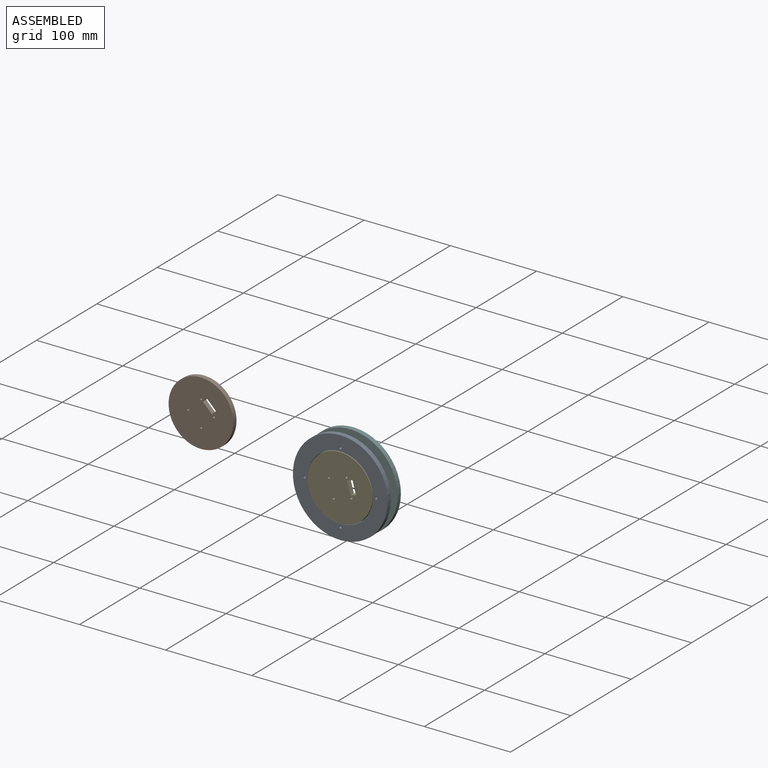
[diagram: assembled view]
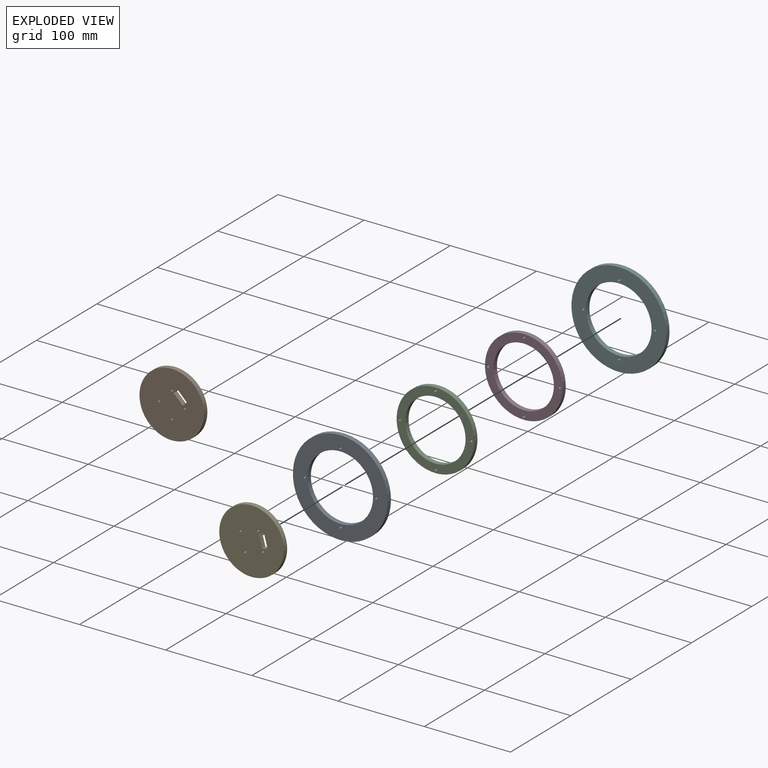
[diagram: exploded view]
GUIDED TOUR — MATED ASSEMBLY (Onshape document 8b8a7d3162498f43e7573d68, AutoMate assembly 8b8a7d3162498f43e7573d68_7b1845c20e63ac5ad6ad9af1_cd9c9a7fb2aed14bbed914a1_default)

This assembly has 6 components, labeled P0..P5 below (a component is one placed occurrence of a part; the same part can appear more than once), held together by 7 mates. A mate is a constraint between two components; its type names the relative motion it leaves free:
  CYLINDRICAL — leaves both rotation about and translation along the listed axis free,
  PLANAR — leaves sliding in the plane through the listed point (normal = the listed direction) and rotation about that normal free.
Axis/direction vectors are unit vectors and 'through' points are millimeter coordinates, both in the assembly's world frame.

MATES
  1. PLANAR "Planar 3": P5 <-> P3, direction (0.000, -1.000, 0.000) through (-0.67, 6.67, 12.19) mm
  2. CYLINDRICAL "Cylindrical 3": P5 <-> P3, axis (0.000, -1.000, 0.000) through (-0.67, 6.67, 12.19) mm
  3. CYLINDRICAL "Cylindrical 4": P4 <-> P0, axis (0.000, 1.000, 0.000) through (-0.67, -4.78, 12.19) mm
  4. PLANAR "Planar 2": P2 <-> P0, direction (0.000, -1.000, 0.000) through (-0.67, -4.27, 12.19) mm
  5. CYLINDRICAL "Cylindrical 1": P2 <-> P3, axis (0.000, 1.000, 0.000) through (-0.67, 1.20, 12.19) mm
  6. PLANAR "Planar 1": P3 <-> P2, direction (0.000, -1.000, 0.000) through (-0.67, 1.20, 12.19) mm
  7. CYLINDRICAL "Cylindrical 2": P2 <-> P0, axis (0.000, -1.000, 0.000) through (-0.67, -4.27, 12.19) mm

ASSEMBLY ORDER
  1. P0 — the base component [order verified]
  2. P4 [order verified]
  3. P2 [order verified]
  4. P3 [order verified]
  5. P5 [order verified]
  6. P1 [order verified]
Order-tag legend:
  [order verified] — this step's position reverses a verified removal order: the component was checked to insert without passing through the ones already placed.

Of the 6 components, 4 carry the full construction recipe — the FeatureScript program that regenerates the part's solid from scratch; the rest are supplied as boundary geometry only.
Each toured component is shown spotlighted twice — in the assembled view, then in the exploded view, where a leader line traces a displaced component back to its assembled socket (saturated green if recipe-attached, orange if geometry-only; every other component desaturated gray) — followed by its recipe or geometry summary and the mates that hold it.
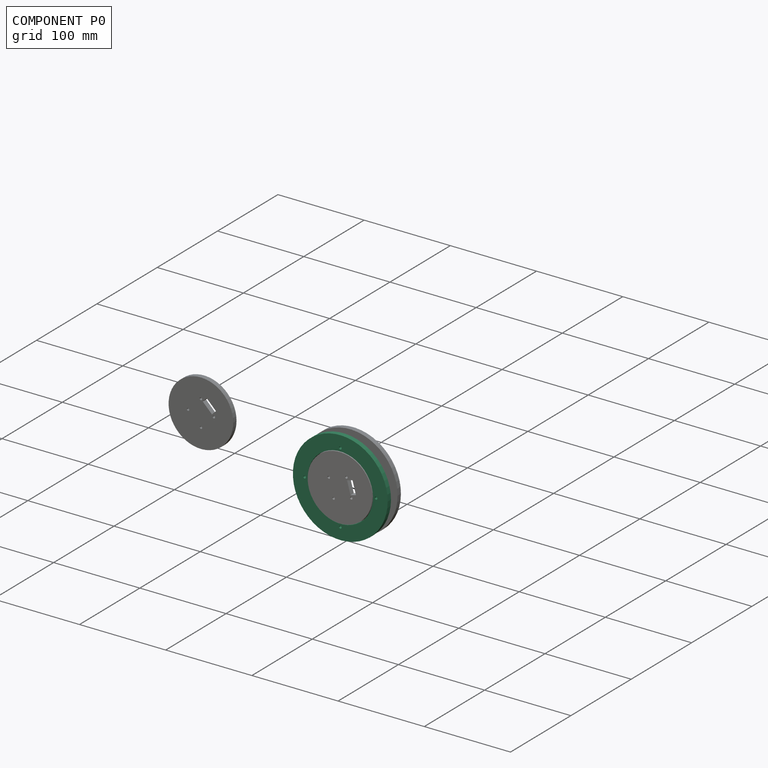
[diagram: component P0 — assembled]
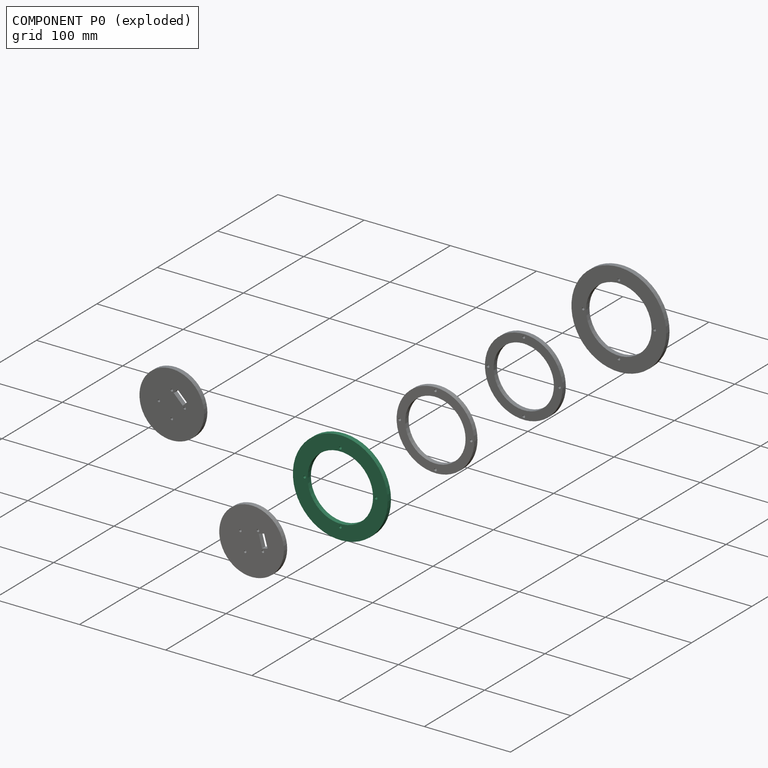
[diagram: component P0 — exploded]
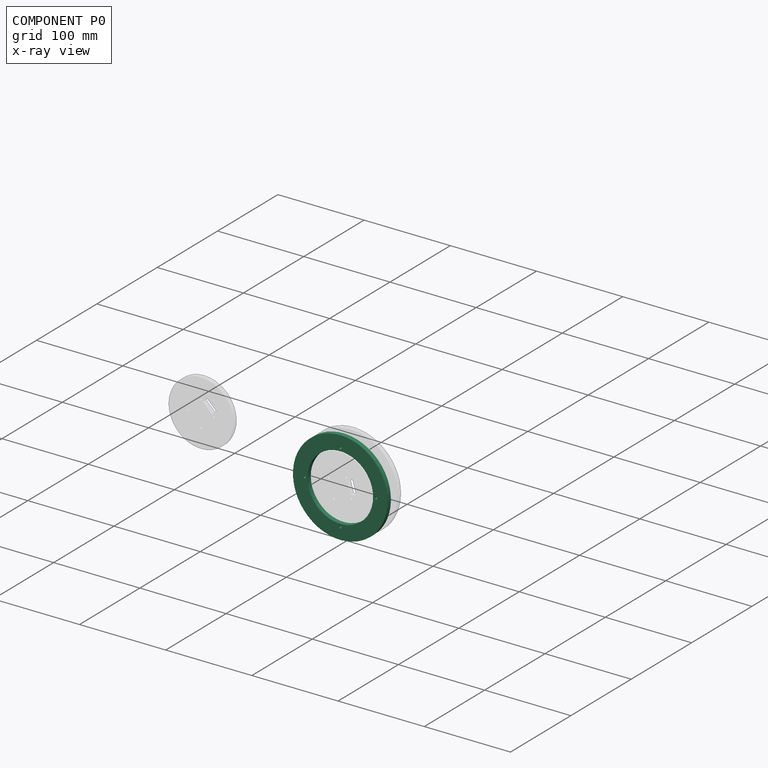
[diagram: component P0 — x-ray view]
COMPONENT P0 — recipe-attached (CADFS 00191798, mesh-verified: the recipe's output STEP matches this component's geometry to below the mesh-comparison resolution (tessellation chordal tolerance ~0.233 mm)).
Held by: CYLINDRICAL mate "Cylindrical 4" to P4; PLANAR mate "Planar 2" to P2; CYLINDRICAL mate "Cylindrical 2" to P2.
Construction recipe (FeatureScript — the CAD program that rebuilds this solid; sketch coordinates are in the units given by the * unit suffixes, e.g. mm):

FeatureScript 1511;
import(path : "onshape/std/geometry.fs", version : "1511.0");
import(path : "onshape/std/common.fs", version : "1511.0");
const mm = millimeter;
const VERTEX = EntityType.VERTEX;
const EDGE = EntityType.EDGE;
const FACE = EntityType.FACE;
const BODY = EntityType.BODY;
function v(x, y){return vector(x, y);}
function OD(order){return orderDisambiguation(order);}
function OSD(set){return originalSetDisambiguation(set);}
function TD(topology){return topologyDisambiguation(topology);}
function TDD(query){return trueDependencyDisambiguation(query);}
function sQuery(a, b, c) {return sketchEntityQuery(a, b, c);}

annotation { "Feature Type Name" : "Feature", "Feature Type Description" : "" }
export const myFeature = defineFeature(function(context is Context, id is Id, definition is map)
    precondition{}
    {
        {
            var Q0;
            Q0=qCreatedBy(makeId("Front.planeOp"),FACE);
            var sketch = newSketch(context, id + "F0", { "sketchPlane" : qUnion([Q0])});
            skCircle(sketch, "E0", {"center": v(0, 0) * mm, "radius": 38 * mm});
            skCircle(sketch, "E1", {"center": v(0, 0) * mm, "radius": 55 * mm});
            skCircle(sketch, "E2", {"center": v(0, 0) * mm, "radius": 41.5 * mm, "construction": true});
            skCircle(sketch, "E3", {"center": v(0, 41.5) * mm, "radius": 1.5 * mm});
            skCircle(sketch, "E4.1.0", {"center": v(-41.5, 0) * mm, "radius": 1.5 * mm});
            skCircle(sketch, "E4.2.0", {"center": v(0, -41.5) * mm, "radius": 1.5 * mm});
            skCircle(sketch, "E4.3.0", {"center": v(41.5, 0) * mm, "radius": 1.5 * mm});
            skSolve(sketch);
        }
        {
            var Q0;
            Q0=makeQuery(id+"F0.imprint","IMPRINT",FACE,{"disambiguationData":[TD([[makeQuery(id+"F0.imprint","IMPRINT",EDGE,{"derivedFrom":sQuery(id+"F0.wireOp",EDGE,"E0")}),-1.0]])]});
            extrude(context, id + "F1", {"entities" : qUnion([Q0]), "depth" : 5.47 * mm});
        }
    });
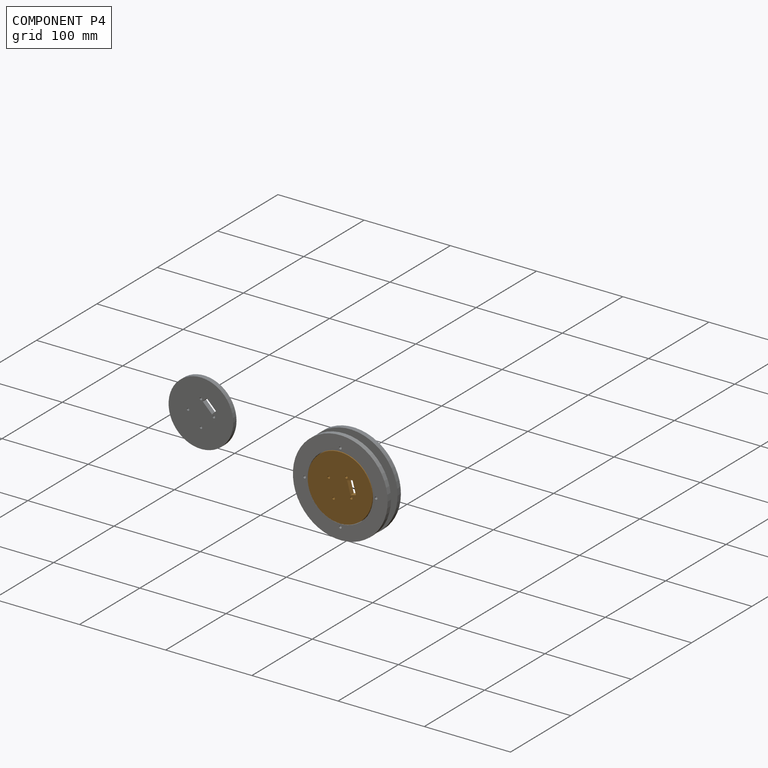
[diagram: component P4 — assembled]
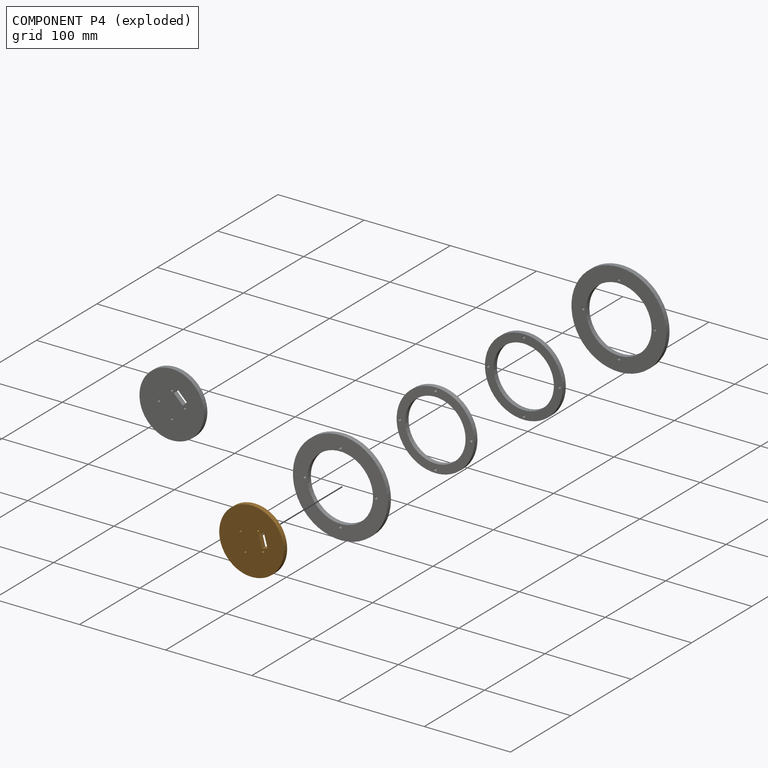
[diagram: component P4 — exploded]
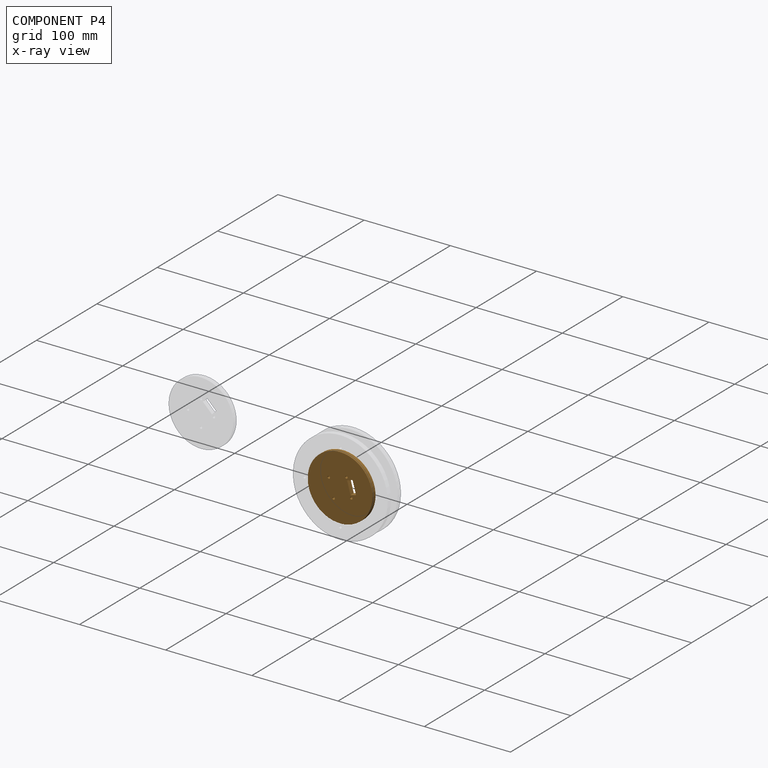
[diagram: component P4 — x-ray view]
COMPONENT P4 — geometry summary (no construction recipe available for this part):
  bounding box: 75.0 x 75.0 x 5.5 mm
  B-rep topology: 1 solid, 11 faces, 54 edges
  volume: 23491 mm^3 (76% of its bounding box)
  symmetry: mirror-symmetric across its y mid-plane
Held by: CYLINDRICAL mate "Cylindrical 4" to P0.
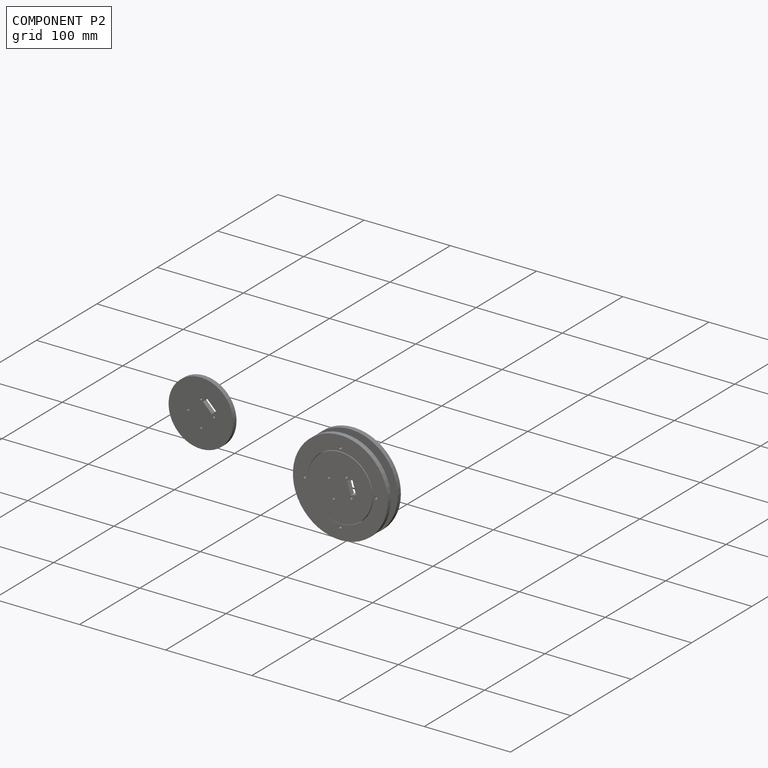
[diagram: component P2 — assembled]
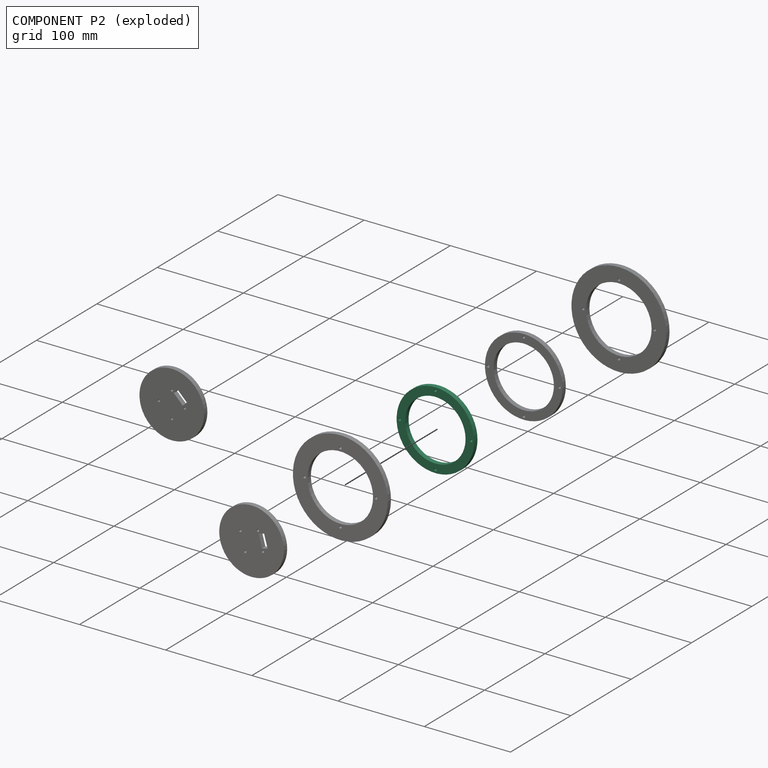
[diagram: component P2 — exploded]
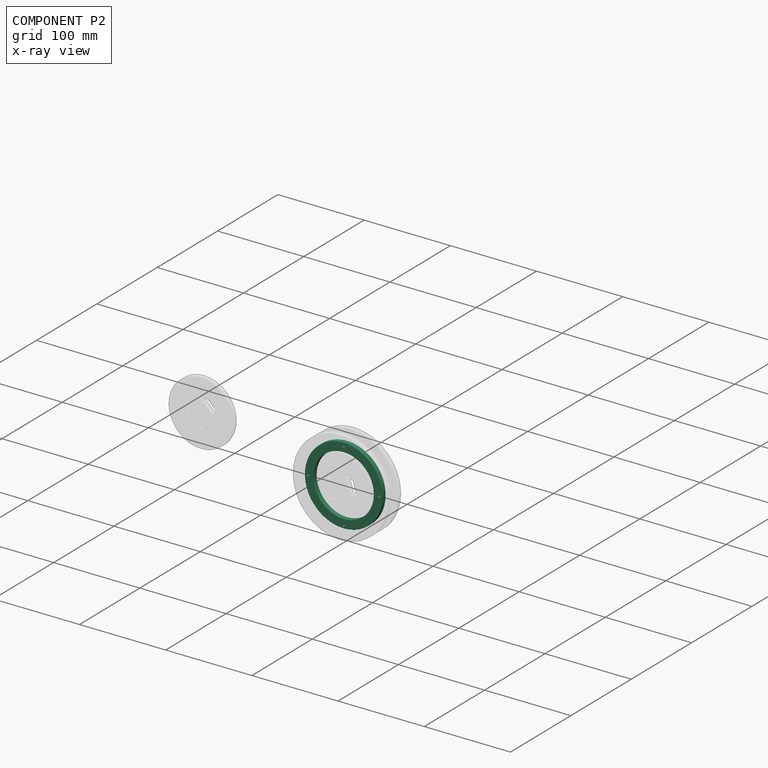
[diagram: component P2 — x-ray view]
COMPONENT P2 — recipe-attached (CADFS 00191773, mesh-verified: the recipe's output STEP matches this component's geometry to below the mesh-comparison resolution (tessellation chordal tolerance ~0.191 mm)).
Held by: PLANAR mate "Planar 2" to P0; CYLINDRICAL mate "Cylindrical 1" to P3; PLANAR mate "Planar 1" to P3; CYLINDRICAL mate "Cylindrical 2" to P0.
Construction recipe (FeatureScript — the CAD program that rebuilds this solid; sketch coordinates are in the units given by the * unit suffixes, e.g. mm):

FeatureScript 1511;
import(path : "onshape/std/geometry.fs", version : "1511.0");
import(path : "onshape/std/common.fs", version : "1511.0");
const mm = millimeter;
const VERTEX = EntityType.VERTEX;
const EDGE = EntityType.EDGE;
const FACE = EntityType.FACE;
const BODY = EntityType.BODY;
function v(x, y){return vector(x, y);}
function OD(order){return orderDisambiguation(order);}
function OSD(set){return originalSetDisambiguation(set);}
function TD(topology){return topologyDisambiguation(topology);}
function TDD(query){return trueDependencyDisambiguation(query);}
function sQuery(a, b, c) {return sketchEntityQuery(a, b, c);}

annotation { "Feature Type Name" : "Feature", "Feature Type Description" : "" }
export const myFeature = defineFeature(function(context is Context, id is Id, definition is map)
    precondition{}
    {
        {
            var Q0;
            Q0=qCreatedBy(makeId("Front.planeOp"),FACE);
            var sketch = newSketch(context, id + "F0", { "sketchPlane" : qUnion([Q0])});
            skCircle(sketch, "E0", {"center": v(0, 0) * mm, "radius": 35 * mm});
            skCircle(sketch, "E1", {"center": v(0, 0) * mm, "radius": 45 * mm});
            skCircle(sketch, "E2", {"center": v(0, 0) * mm, "radius": 41.5 * mm, "construction": true});
            skCircle(sketch, "E3", {"center": v(0, 41.5) * mm, "radius": 1.5 * mm});
            skCircle(sketch, "E4.1.0", {"center": v(-41.5, 0) * mm, "radius": 1.5 * mm});
            skCircle(sketch, "E4.2.0", {"center": v(0, -41.5) * mm, "radius": 1.5 * mm});
            skCircle(sketch, "E4.3.0", {"center": v(41.5, 0) * mm, "radius": 1.5 * mm});
            skSolve(sketch);
        }
        {
            var Q0;
            Q0=makeQuery(id+"F0.imprint","IMPRINT",FACE,{"disambiguationData":[TD([[makeQuery(id+"F0.imprint","IMPRINT",EDGE,{"derivedFrom":sQuery(id+"F0.wireOp",EDGE,"E0")}),-1.0]])]});
            extrude(context, id + "F1", {"entities" : qUnion([Q0]), "depth" : 5.47 * mm});
        }
    });
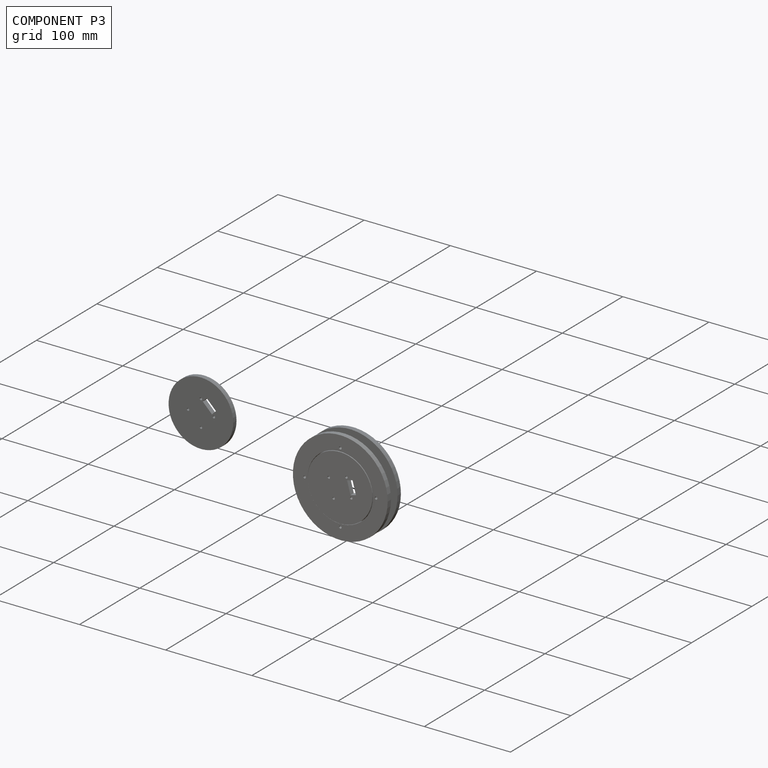
[diagram: component P3 — assembled]
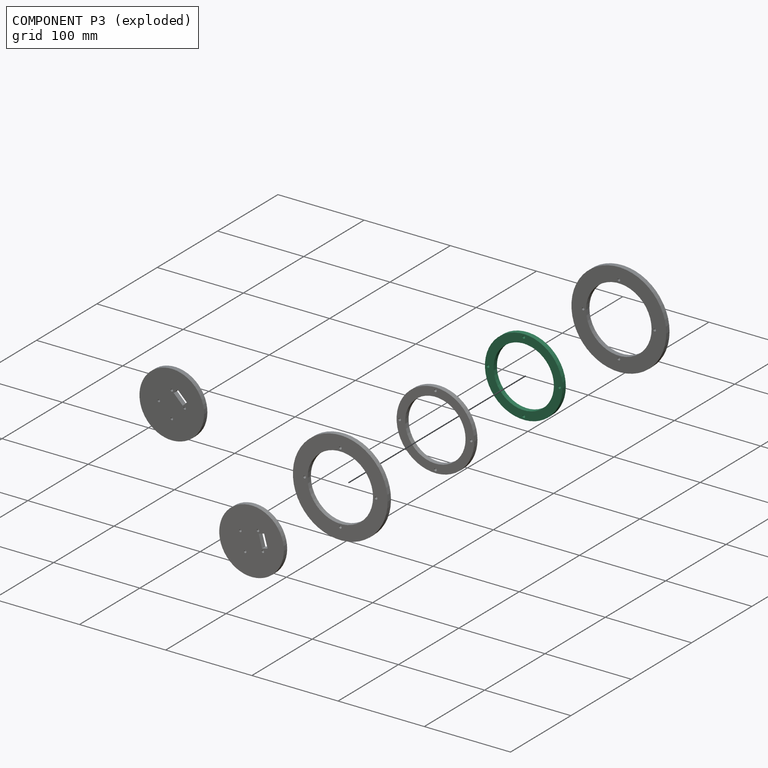
[diagram: component P3 — exploded]
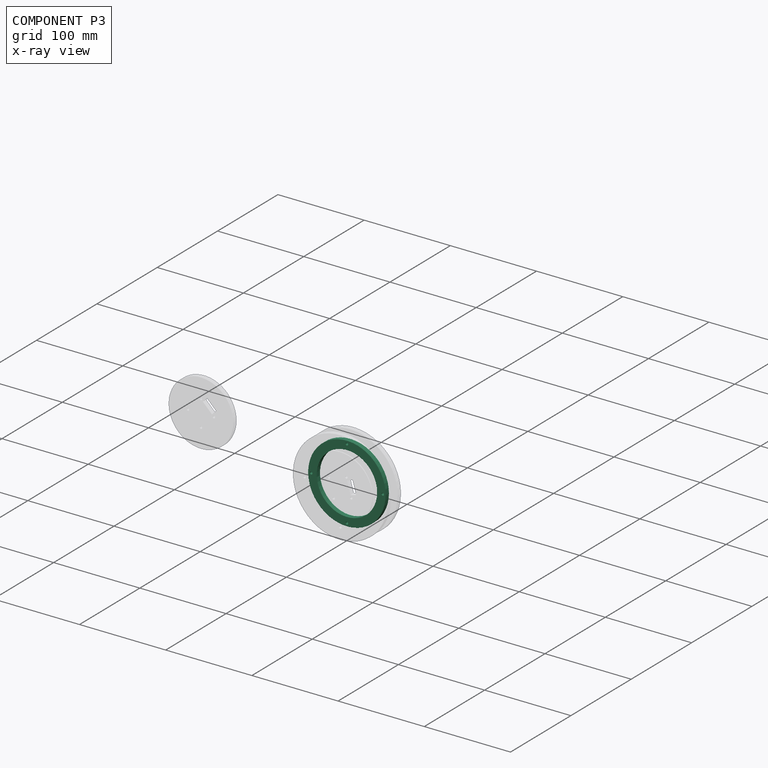
[diagram: component P3 — x-ray view]
COMPONENT P3 — same part as P2 (CADFS 00191773); its construction recipe is shown at P2.
Held by: PLANAR mate "Planar 3" to P5; CYLINDRICAL mate "Cylindrical 3" to P5; CYLINDRICAL mate "Cylindrical 1" to P2; PLANAR mate "Planar 1" to P2.
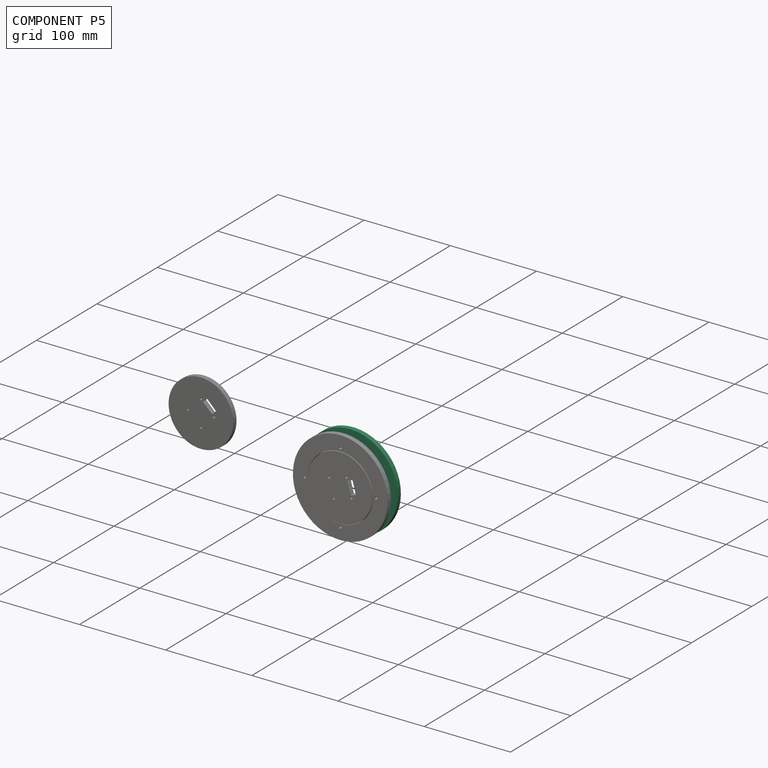
[diagram: component P5 — assembled]
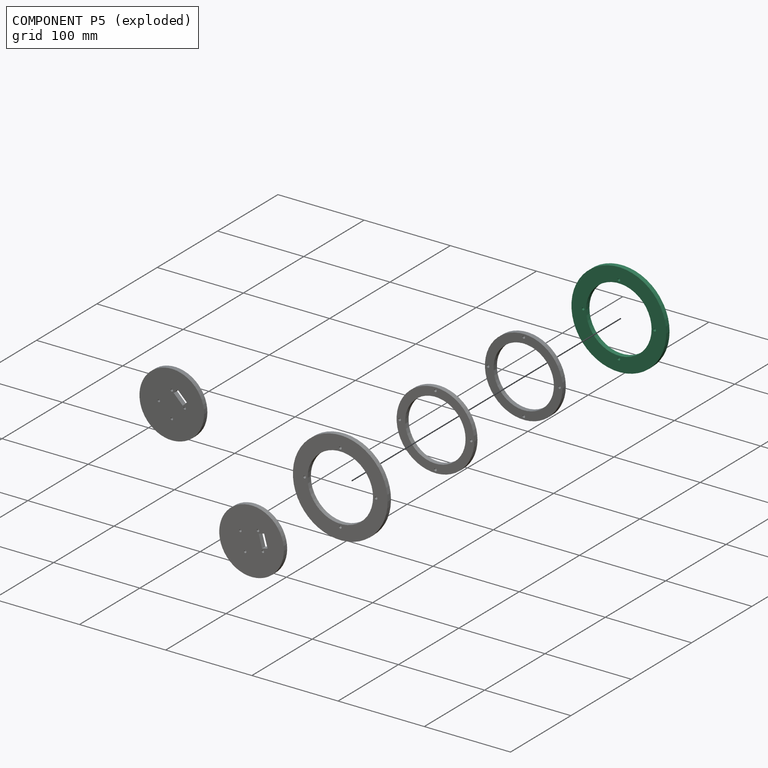
[diagram: component P5 — exploded]
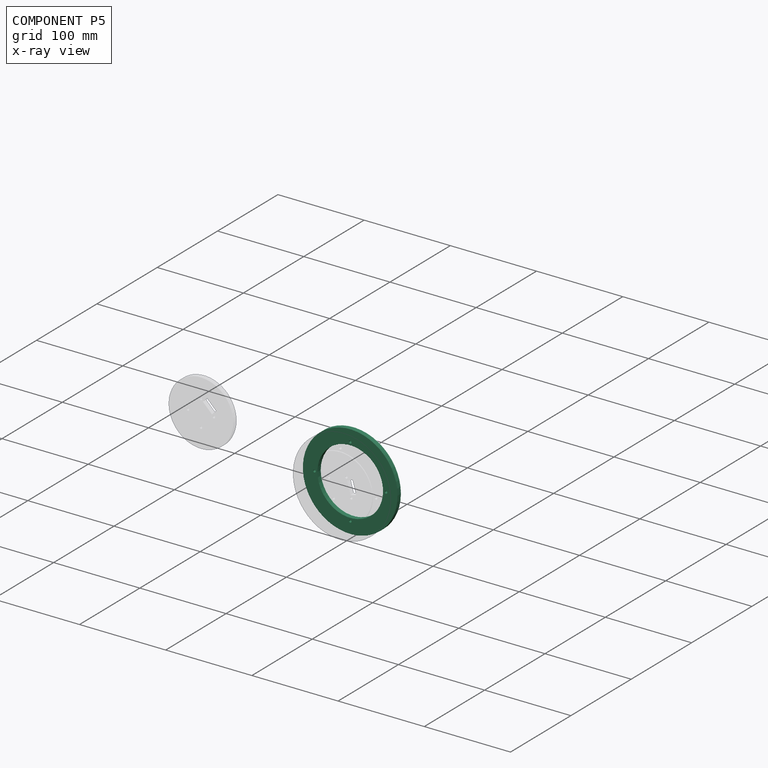
[diagram: component P5 — x-ray view]
COMPONENT P5 — same part as P0 (CADFS 00191798); its construction recipe is shown at P0.
Held by: PLANAR mate "Planar 3" to P3; CYLINDRICAL mate "Cylindrical 3" to P3.
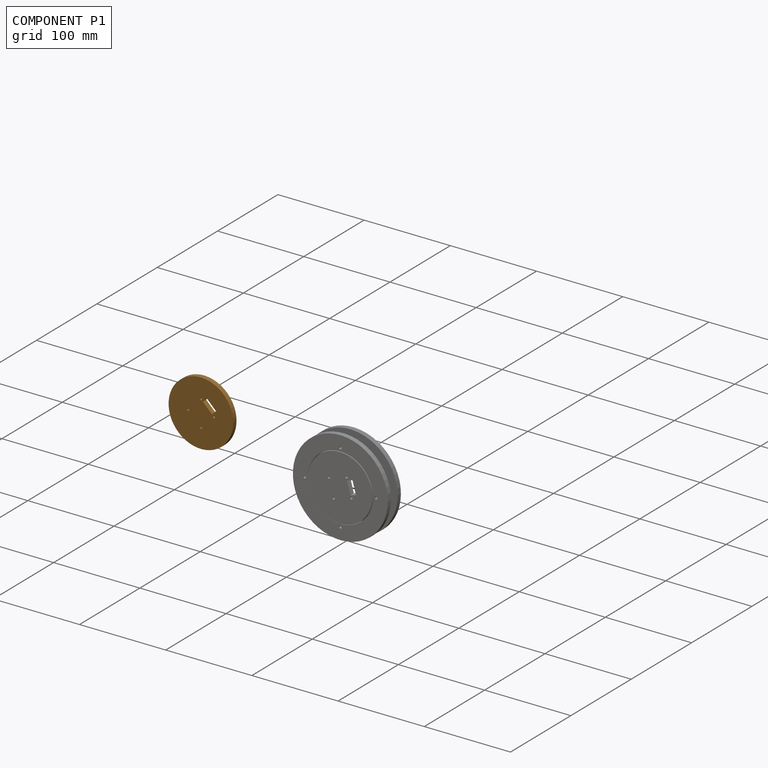
[diagram: component P1 — assembled]
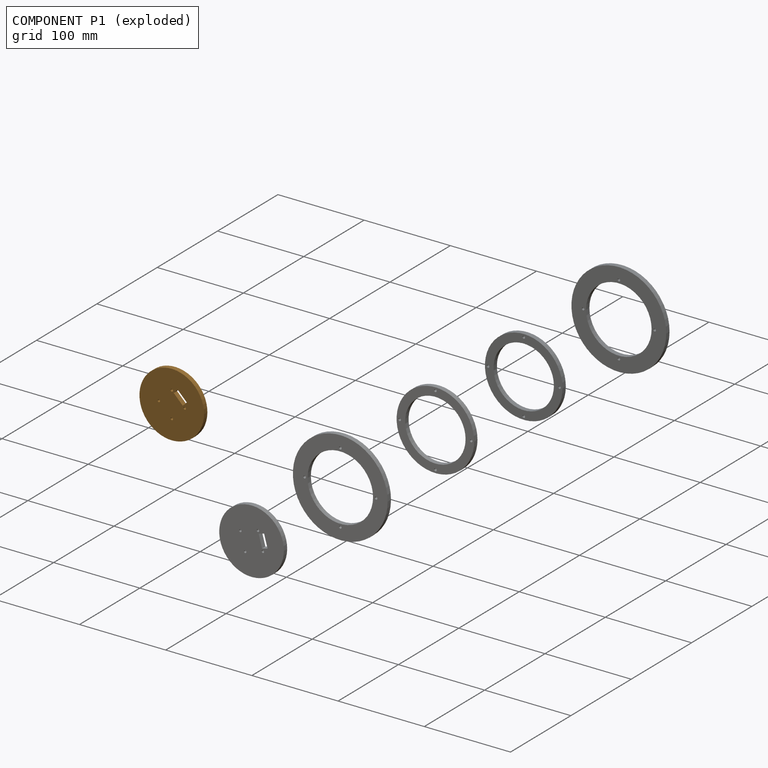
[diagram: component P1 — exploded]
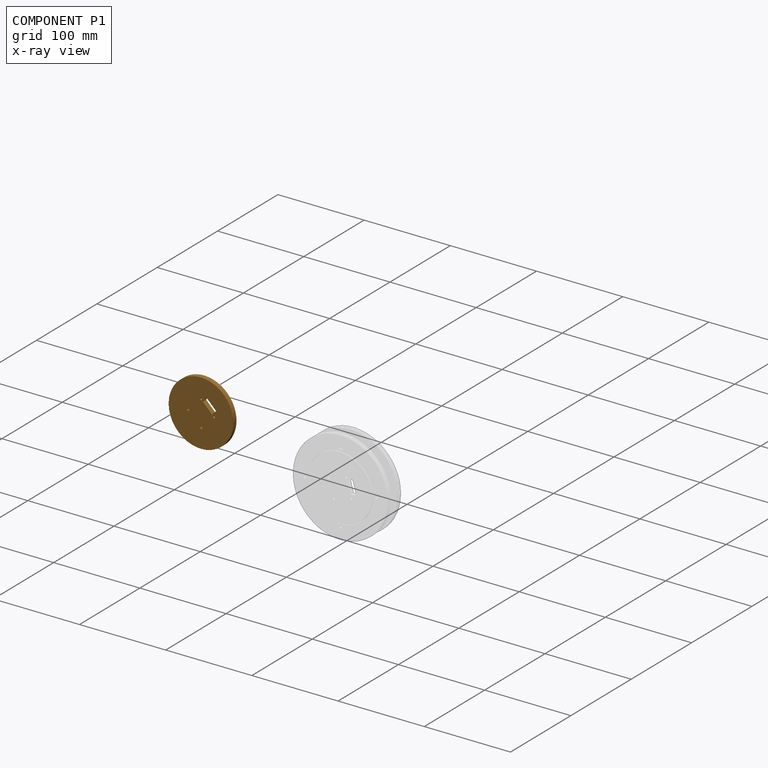
[diagram: component P1 — x-ray view]
COMPONENT P1 — geometry summary (no construction recipe available for this part):
  bounding box: 75.0 x 75.0 x 5.5 mm
  B-rep topology: 1 solid, 11 faces, 54 edges
  volume: 23491 mm^3 (76% of its bounding box)
  symmetry: mirror-symmetric across its y mid-plane
Held by: no mates (free).
PROVENANCE & LICENSES
Assembly (occurrences, transforms, mates, per-part STEP geometry): AutoMate dataset, Zenodo record 7776208, CC0.
Construction recipes: CADFS (HuggingFace VladPyatov/CADFS, CC-BY-4.0, layered over the ABC dataset), FeatureScript reconstruction programs keyed by ABC model id.
Join: ABC meta listings map ABC model id -> Onshape documentId; within a shared document, parts are matched by geometric signature (bounding-box dims + volume at 0.1% relative tolerance, exact B-rep face/solid counts).
Verification: 4 of this assembly's 6 components carry a recipe attachment, and every attachment is mesh-verified: the CADFS STEP and the AutoMate member STEP were compared as meshes in their shared local frame (symmetric sampled-point-to-mesh distance); worst across the 4 attachments: below the mesh-comparison resolution (tessellation chordal tolerance ~0.233 mm) on a 156 mm part.
Renders: orthographic iso camera (az 35 / el 25); the floor grid conveys scale (grid pitch printed in each image; no ruler). In the exploded view each component is displaced by its stored offset vector: the offsets alone carry the explosion direction (mate normal/axis signs are not orientation cues and do not encode it), and separation distances are assigned per mate-chain, not proportionally to assembly-order depth.
